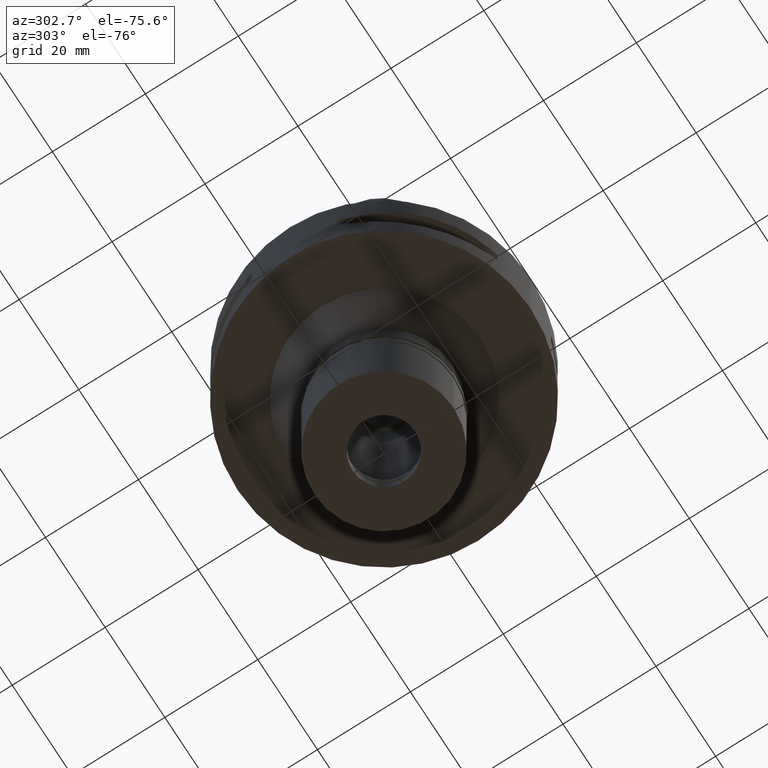
[diagram: clean part render]
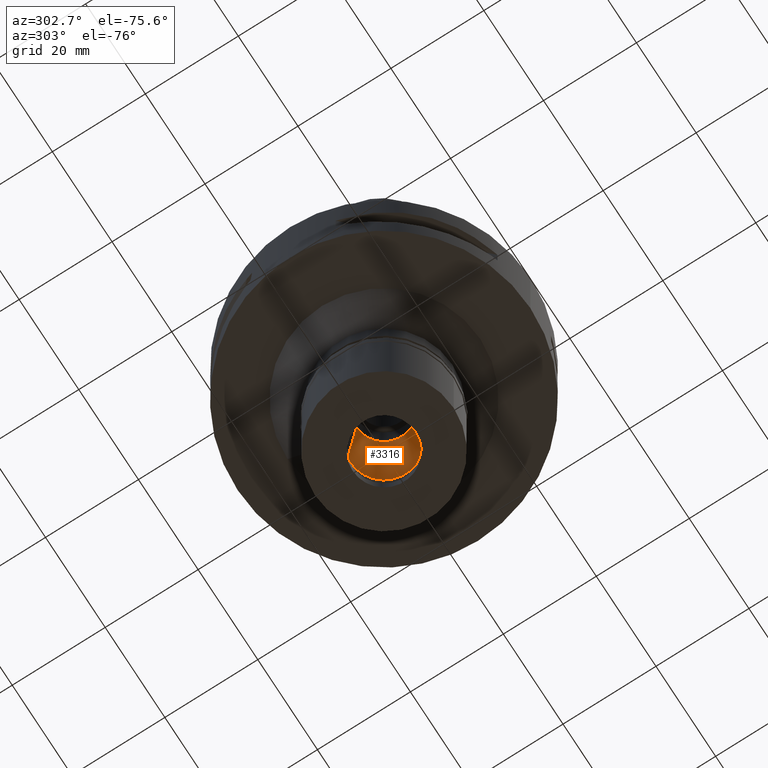
[diagram: same view with one face highlighted and labeled with its STEP entity id]
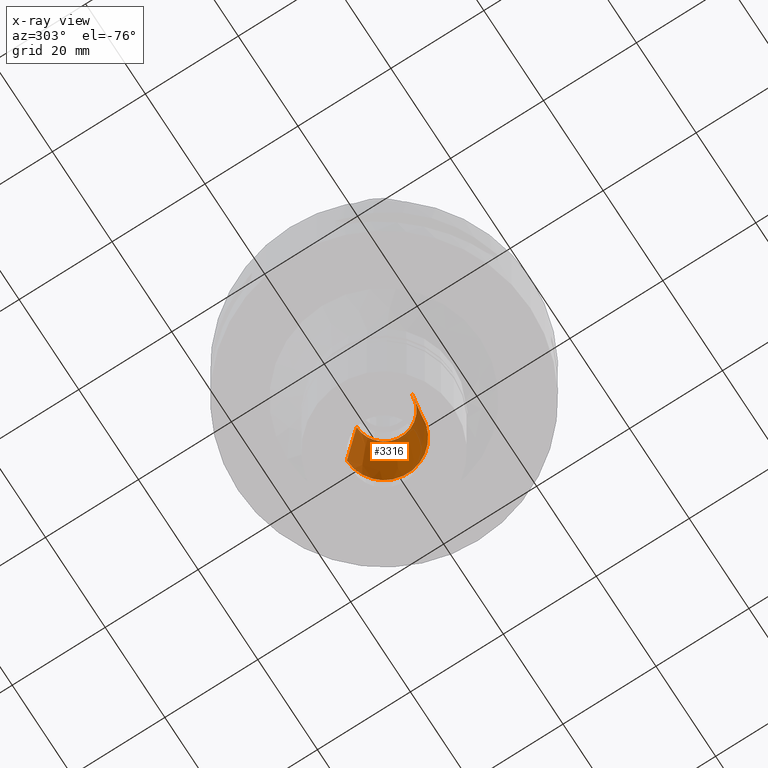
[diagram: x-ray of the same camera — body ghosted, the highlighted face saturated]
A machine part, auxiliary view. The second image highlights one B-rep face of the part: STEP entity #3316.
The next image is the same camera in x-ray: the body ghosted, the highlighted face saturated — about 8% of this face is hidden behind the body in this view.
In plain terms, the highlighted conical surface has half-angle 6 deg.
Its self-contained STEP definition (entity closure, byte-faithful):
#134 = CARTESIAN_POINT ( 'NONE',  ( 0.0000000000000000000, 8.000000000000000000, -50.00000000000000000 ) ) ;
#141 = ORIENTED_EDGE ( 'NONE', *, *, #4728, .T. ) ;
#315 = VERTEX_POINT ( 'NONE', #134 ) ;
#478 = CARTESIAN_POINT ( 'NONE',  ( 0.0000000000000000000, 8.000000000000000000, -50.00000000000000000 ) ) ;
#486 = CARTESIAN_POINT ( 'NONE',  ( 0.0000000000000000000, 0.0000000000000000000, -50.00000000000000000 ) ) ;
#711 = CARTESIAN_POINT ( 'NONE',  ( 0.0000000000000000000, 5.897915294685999399, -30.00000000000000000 ) ) ;
#1186 = CIRCLE ( 'NONE', #1887, 5.897915294685999399 ) ;
#1487 = EDGE_LOOP ( 'NONE', ( #141, #4341, #2363, #4379 ) ) ;
#1567 = DIRECTION ( 'NONE',  ( 0.0000000000000000000, -1.000000000000000000, 0.0000000000000000000 ) ) ;
#1623 = CARTESIAN_POINT ( 'NONE',  ( 0.0000000000000000000, 0.0000000000000000000, -40.00000000000000000 ) ) ;
#1625 = DIRECTION ( 'NONE',  ( 0.0000000000000000000, -0.1045284632676965891, 0.9945218953682687379 ) ) ;
#1686 = DIRECTION ( 'NONE',  ( 0.0000000000000000000, 0.0000000000000000000, -1.000000000000000000 ) ) ;
#1705 = CARTESIAN_POINT ( 'NONE',  ( 0.0000000000000000000, -8.000000000000000000, -50.00000000000000000 ) ) ;
#1792 = DIRECTION ( 'NONE',  ( 0.0000000000000000000, 0.0000000000000000000, 1.000000000000000000 ) ) ;
#1800 = EDGE_CURVE ( 'NONE', #3635, #1973, #1186, .T. ) ;
#1813 = VECTOR ( 'NONE', #3399, 1000.000000000000227 ) ;
#1827 = CIRCLE ( 'NONE', #4397, 8.000000000000000000 ) ;
#1887 = AXIS2_PLACEMENT_3D ( 'NONE', #3642, #1792, #3282 ) ;
#1973 = VERTEX_POINT ( 'NONE', #711 ) ;
#2012 = DIRECTION ( 'NONE',  ( 0.0000000000000000000, 0.0000000000000000000, -1.000000000000000000 ) ) ;
#2126 = CONICAL_SURFACE ( 'NONE', #3601, 6.948957647342999699, 0.1047197551196402399 ) ;
#2279 = LINE ( 'NONE', #4179, #1813 ) ;
#2363 = ORIENTED_EDGE ( 'NONE', *, *, #1800, .T. ) ;
#2703 = LINE ( 'NONE', #478, #3531 ) ;
#2718 = CARTESIAN_POINT ( 'NONE',  ( 0.0000000000000000000, -5.897915294685999399, -30.00000000000000000 ) ) ;
#3282 = DIRECTION ( 'NONE',  ( 0.0000000000000000000, -1.000000000000000000, 0.0000000000000000000 ) ) ;
#3316 = ADVANCED_FACE ( 'NONE', ( #4542 ), #2126, .F. ) ;
#3399 = DIRECTION ( 'NONE',  ( 0.0000000000000000000, 0.1045284632676965891, 0.9945218953682687379 ) ) ;
#3531 = VECTOR ( 'NONE', #1625, 1000.000000000000227 ) ;
#3601 = AXIS2_PLACEMENT_3D ( 'NONE', #1623, #2012, #1567 ) ;
#3635 = VERTEX_POINT ( 'NONE', #2718 ) ;
#3642 = CARTESIAN_POINT ( 'NONE',  ( 0.0000000000000000000, 0.0000000000000000000, -30.00000000000000000 ) ) ;
#3712 = EDGE_CURVE ( 'NONE', #4650, #3635, #2279, .T. ) ;
#3891 = DIRECTION ( 'NONE',  ( 0.0000000000000000000, 1.000000000000000000, 0.0000000000000000000 ) ) ;
#4046 = EDGE_CURVE ( 'NONE', #315, #1973, #2703, .T. ) ;
#4179 = CARTESIAN_POINT ( 'NONE',  ( 0.0000000000000000000, -8.000000000000000000, -50.00000000000000000 ) ) ;
#4341 = ORIENTED_EDGE ( 'NONE', *, *, #3712, .T. ) ;
#4379 = ORIENTED_EDGE ( 'NONE', *, *, #4046, .F. ) ;
#4397 = AXIS2_PLACEMENT_3D ( 'NONE', #486, #1686, #3891 ) ;
#4542 = FACE_OUTER_BOUND ( 'NONE', #1487, .T. ) ;
#4650 = VERTEX_POINT ( 'NONE', #1705 ) ;
#4728 = EDGE_CURVE ( 'NONE', #315, #4650, #1827, .T. ) ;